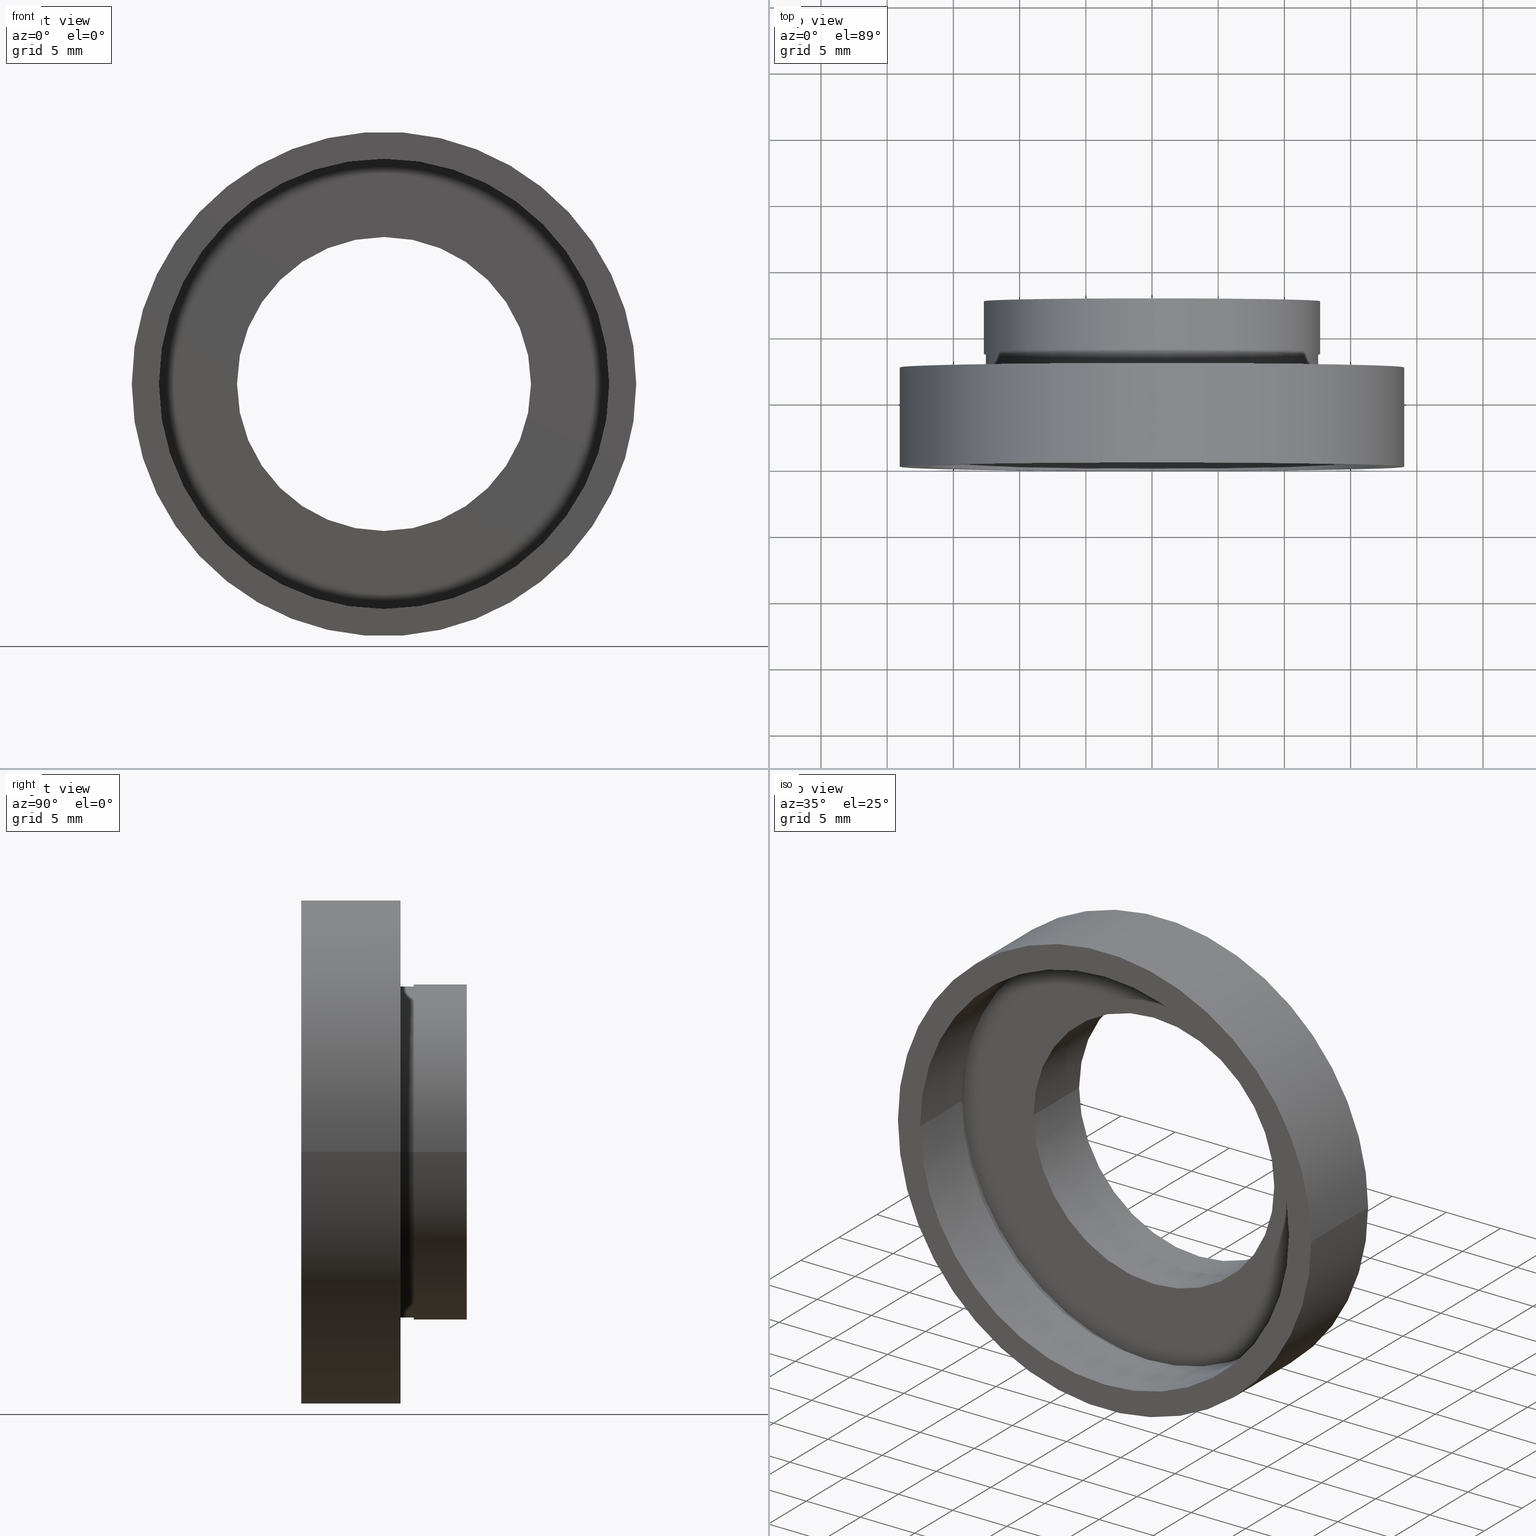
[diagram: canonical four-view strip — front | top / right | iso, engineering-drawing reading convention]
A machine part, canonical four-view strip (front | top / right | iso — engineering-drawing reading convention). The complete STEP part file that produces these views, byte-faithful:
ISO-10303-21;
HEADER;
FILE_DESCRIPTION (( 'STEP AP214' ),
    '1' );
FILE_NAME ('504056.STEP',
    '2019-10-08T03:40:58',
    ( 'user' ),
    ( '΢���й�' ),
    'SwSTEP 2.0',
    'SolidWorks 2016',
    '' );
FILE_SCHEMA (( 'AUTOMOTIVE_DESIGN' ));
ENDSEC;

DATA;
#1 = ORIENTED_EDGE ( 'NONE', *, *, #237, .F. ) ;
#2 = SURFACE_STYLE_USAGE ( .BOTH. , #83 ) ;
#3 = CYLINDRICAL_SURFACE ( 'NONE', #156, 12.69999999999999900 ) ;
#4 = APPLICATION_PROTOCOL_DEFINITION ( 'draft international standard', 'automotive_design', 1998, #161 ) ;
#5 = DIRECTION ( 'NONE',  ( -1.000000000000000000, -1.382249781654826400E-016, 0.0000000000000000000 ) ) ;
#6 = EDGE_CURVE ( 'NONE', #124, #435, #504, .T. ) ;
#7 = AXIS2_PLACEMENT_3D ( 'NONE', #464, #590, #567 ) ;
#8 = VERTEX_POINT ( 'NONE', #495 ) ;
#9 = LINE ( 'NONE', #387, #471 ) ;
#10 = ADVANCED_BREP_SHAPE_REPRESENTATION ( '504056', ( #474, #199 ), #293 ) ;
#11 = ADVANCED_FACE ( 'NONE', ( #548 ), #3, .T. ) ;
#12 = AXIS2_PLACEMENT_3D ( 'NONE', #391, #209, #385 ) ;
#13 = CIRCLE ( 'NONE', #619, 17.00000000000000000 ) ;
#14 = FACE_BOUND ( 'NONE', #534, .T. ) ;
#15 = FILL_AREA_STYLE ('',( #273 ) ) ;
#16 = EDGE_CURVE ( 'NONE', #509, #100, #226, .T. ) ;
#17 = CYLINDRICAL_SURFACE ( 'NONE', #7, 17.00000000000000000 ) ;
#18 = DIRECTION ( 'NONE',  ( 0.0000000000000000000, 0.0000000000000000000, 1.000000000000000000 ) ) ;
#19 = EDGE_LOOP ( 'NONE', ( #47, #71, #171, #505 ) ) ;
#20 =( NAMED_UNIT ( * ) SI_UNIT ( $, .STERADIAN. ) SOLID_ANGLE_UNIT ( ) );
#21 =( NAMED_UNIT ( * ) SI_UNIT ( $, .STERADIAN. ) SOLID_ANGLE_UNIT ( ) );
#22 = VERTEX_POINT ( 'NONE', #198 ) ;
#23 = CARTESIAN_POINT ( 'NONE',  ( 1.271920398992858000E-015, 6.499999999999997300, 0.0000000000000000000 ) ) ;
#24 = CARTESIAN_POINT ( 'NONE',  ( -17.00000000000000000, 16.88601823708207300, 0.0000000000000000000 ) ) ;
#25 = ADVANCED_FACE ( 'NONE', ( #517, #516 ), #291, .F. ) ;
#26 = AXIS2_PLACEMENT_3D ( 'NONE', #256, #515, #177 ) ;
#27 = AXIS2_PLACEMENT_3D ( 'NONE', #242, #229, #588 ) ;
#28 = SURFACE_STYLE_FILL_AREA ( #301 ) ;
#29 = EDGE_CURVE ( 'NONE', #124, #577, #494, .T. ) ;
#30 = ORIENTED_EDGE ( 'NONE', *, *, #16, .T. ) ;
#31 = FILL_AREA_STYLE_COLOUR ( '', #153 ) ;
#32 = CIRCLE ( 'NONE', #27, 12.55000000000000100 ) ;
#33 = DIRECTION ( 'NONE',  ( -1.224646799147351000E-016, 1.000000000000000000, -0.0000000000000000000 ) ) ;
#34 = DIRECTION ( 'NONE',  ( -1.224646799147351000E-016, 1.000000000000000000, -0.0000000000000000000 ) ) ;
#35 = ORIENTED_EDGE ( 'NONE', *, *, #575, .T. ) ;
#36 = CARTESIAN_POINT ( 'NONE',  ( 12.55000000000000100, 16.88601823708207700, 1.536931732929928400E-015 ) ) ;
#37 = CARTESIAN_POINT ( 'NONE',  ( 12.55000000000000200, 8.500000000000000000, 1.536931732929928400E-015 ) ) ;
#38 = DIRECTION ( 'NONE',  ( 1.000000000000000000, 1.224646799147351000E-016, 0.0000000000000000000 ) ) ;
#39 = CIRCLE ( 'NONE', #26, 12.55000000000000100 ) ;
#40 = DIRECTION ( 'NONE',  ( -1.224646799147351000E-016, 1.000000000000000000, -0.0000000000000000000 ) ) ;
#41 = DIRECTION ( 'NONE',  ( -1.224646799147351000E-016, 1.000000000000000000, -0.0000000000000000000 ) ) ;
#42 = ORIENTED_EDGE ( 'NONE', *, *, #247, .F. ) ;
#43 = ORIENTED_EDGE ( 'NONE', *, *, #437, .T. ) ;
#44 = EDGE_CURVE ( 'NONE', #585, #116, #234, .T. ) ;
#45 = AXIS2_PLACEMENT_3D ( 'NONE', #485, #230, #616 ) ;
#46 = DIRECTION ( 'NONE',  ( -1.000000000000000000, 0.0000000000000000000, 0.0000000000000000000 ) ) ;
#47 = ORIENTED_EDGE ( 'NONE', *, *, #308, .T. ) ;
#48 = MECHANICAL_DESIGN_GEOMETRIC_PRESENTATION_REPRESENTATION (  '', ( #312 ), #376 ) ;
#49 = UNCERTAINTY_MEASURE_WITH_UNIT (LENGTH_MEASURE( 1.000000000000000100E-005 ), #528, 'distance_accuracy_value', 'NONE');
#50 = AXIS2_PLACEMENT_3D ( 'NONE', #563, #578, #97 ) ;
#51 = DIRECTION ( 'NONE',  ( -1.000000000000000000, -1.365923996832131600E-016, 0.0000000000000000000 ) ) ;
#52 = EDGE_CURVE ( 'NONE', #509, #533, #486, .T. ) ;
#53 = DIRECTION ( 'NONE',  ( -1.224646799147351000E-016, 1.000000000000000000, 0.0000000000000000000 ) ) ;
#54 = ADVANCED_FACE ( 'NONE', ( #217, #488 ), #325, .F. ) ;
#55 = DIRECTION ( 'NONE',  ( 1.000000000000000000, 1.224646799147351000E-016, 0.0000000000000000000 ) ) ;
#56 = CIRCLE ( 'NONE', #519, 17.60000000000000100 ) ;
#57 = VERTEX_POINT ( 'NONE', #82 ) ;
#58 = VECTOR ( 'NONE', #421, 1000.000000000000000 ) ;
#59 = ADVANCED_FACE ( 'NONE', ( #595 ), #332, .F. ) ;
#60 = DIRECTION ( 'NONE',  ( -1.224646799147351000E-016, 1.000000000000000000, -0.0000000000000000000 ) ) ;
#61 = EDGE_LOOP ( 'NONE', ( #452, #371, #131, #77 ) ) ;
#62 = CARTESIAN_POINT ( 'NONE',  ( -17.60000000000000100, 6.499999999999995600, 0.0000000000000000000 ) ) ;
#63 = FACE_OUTER_BOUND ( 'NONE', #343, .T. ) ;
#64 = EDGE_LOOP ( 'NONE', ( #102, #140, #614, #160 ) ) ;
#65 =( GEOMETRIC_REPRESENTATION_CONTEXT ( 3 ) GLOBAL_UNCERTAINTY_ASSIGNED_CONTEXT ( ( #602 ) ) GLOBAL_UNIT_ASSIGNED_CONTEXT ( ( #415, #422, #151 ) ) REPRESENTATION_CONTEXT ( 'NONE', 'WORKASPACE' ) );
#66 = STYLED_ITEM ( 'NONE', ( #164 ), #11 ) ;
#67 = COLOUR_RGB ( '',1.000000000000000000, 1.000000000000000000, 1.000000000000000000 ) ;
#68 = ORIENTED_EDGE ( 'NONE', *, *, #420, .F. ) ;
#69 = DIRECTION ( 'NONE',  ( -1.224646799147351000E-016, 1.000000000000000000, -0.0000000000000000000 ) ) ;
#70 = FACE_BOUND ( 'NONE', #610, .T. ) ;
#71 = ORIENTED_EDGE ( 'NONE', *, *, #562, .T. ) ;
#72 = UNCERTAINTY_MEASURE_WITH_UNIT (LENGTH_MEASURE( 1.000000000000000100E-005 ), #411, 'distance_accuracy_value', 'NONE');
#73 = DIRECTION ( 'NONE',  ( -1.000000000000000000, -1.224646799147351500E-016, 0.0000000000000000000 ) ) ;
#74 = ORIENTED_EDGE ( 'NONE', *, *, #436, .T. ) ;
#75 = CIRCLE ( 'NONE', #165, 11.10000000000000000 ) ;
#76 = EDGE_CURVE ( 'NONE', #100, #278, #9, .T. ) ;
#77 = ORIENTED_EDGE ( 'NONE', *, *, #6, .F. ) ;
#78 =( GEOMETRIC_REPRESENTATION_CONTEXT ( 3 ) GLOBAL_UNCERTAINTY_ASSIGNED_CONTEXT ( ( #402 ) ) GLOBAL_UNIT_ASSIGNED_CONTEXT ( ( #532, #540, #581 ) ) REPRESENTATION_CONTEXT ( 'NONE', 'WORKASPACE' ) );
#79 = CARTESIAN_POINT ( 'NONE',  ( 2.067940818438636500E-015, -3.469446951953614200E-015, 0.0000000000000000000 ) ) ;
#80 = SURFACE_STYLE_FILL_AREA ( #267 ) ;
#81 = CARTESIAN_POINT ( 'NONE',  ( 12.55000000000000200, 7.500000000000000000, 1.536931732929928400E-015 ) ) ;
#82 = CARTESIAN_POINT ( 'NONE',  ( -12.69999999999999600, 8.499999999999996400, 0.0000000000000000000 ) ) ;
#83 = SURFACE_SIDE_STYLE ('',( #28 ) ) ;
#84 = CIRCLE ( 'NONE', #477, 11.10000000000000100 ) ;
#85 = CARTESIAN_POINT ( 'NONE',  ( -12.69999999999999900, 16.88601823708207700, 0.0000000000000000000 ) ) ;
#86 = DIRECTION ( 'NONE',  ( -1.224646799147351000E-016, 1.000000000000000000, -0.0000000000000000000 ) ) ;
#87 = ORIENTED_EDGE ( 'NONE', *, *, #205, .F. ) ;
#88 = ORIENTED_EDGE ( 'NONE', *, *, #76, .F. ) ;
#89 = ORIENTED_EDGE ( 'NONE', *, *, #529, .T. ) ;
#90 = DIRECTION ( 'NONE',  ( -1.224646799147351000E-016, 1.000000000000000000, -0.0000000000000000000 ) ) ;
#91 = UNCERTAINTY_MEASURE_WITH_UNIT (LENGTH_MEASURE( 1.000000000000000100E-005 ), #196, 'distance_accuracy_value', 'NONE');
#92 = PRESENTATION_LAYER_ASSIGNMENT (  '', '', ( #66 ) ) ;
#93 = PRESENTATION_STYLE_ASSIGNMENT (( #340 ) ) ;
#94 = DIRECTION ( 'NONE',  ( -1.000000000000000000, -1.365923996832131600E-016, 0.0000000000000000000 ) ) ;
#95 = CYLINDRICAL_SURFACE ( 'NONE', #150, 17.00000000000000000 ) ;
#96 = SURFACE_STYLE_FILL_AREA ( #227 ) ;
#97 = DIRECTION ( 'NONE',  ( -1.000000000000000000, -9.856383386231857600E-017, 0.0000000000000000000 ) ) ;
#98 = DIRECTION ( 'NONE',  ( -1.224646799147351000E-016, 1.000000000000000000, -0.0000000000000000000 ) ) ;
#99 = DIRECTION ( 'NONE',  ( -1.224646799147351000E-016, 1.000000000000000000, -0.0000000000000000000 ) ) ;
#100 = VERTEX_POINT ( 'NONE', #236 ) ;
#101 = FACE_OUTER_BOUND ( 'NONE', #158, .T. ) ;
#102 = ORIENTED_EDGE ( 'NONE', *, *, #361, .F. ) ;
#103 = CARTESIAN_POINT ( 'NONE',  ( 1.271920398992858000E-015, 6.499999999999997300, 0.0000000000000000000 ) ) ;
#104 = LINE ( 'NONE', #139, #179 ) ;
#105 = AXIS2_PLACEMENT_3D ( 'NONE', #129, #410, #493 ) ;
#106 = PRESENTATION_LAYER_ASSIGNMENT (  '', '', ( #277 ) ) ;
#107 = MECHANICAL_DESIGN_GEOMETRIC_PRESENTATION_REPRESENTATION (  '', ( #66 ), #138 ) ;
#108 = ORIENTED_EDGE ( 'NONE', *, *, #52, .T. ) ;
#109 = CARTESIAN_POINT ( 'NONE',  ( 5.371323195044474300E-016, 12.49999999999999600, 0.0000000000000000000 ) ) ;
#110 = SURFACE_STYLE_FILL_AREA ( #330 ) ;
#111 = DIRECTION ( 'NONE',  ( -1.000000000000000000, -9.856383386231857600E-017, 0.0000000000000000000 ) ) ;
#112 = FILL_AREA_STYLE_COLOUR ( '', #409 ) ;
#113 = CARTESIAN_POINT ( 'NONE',  ( 1.149455719078122700E-015, 7.499999999999998200, 0.0000000000000000000 ) ) ;
#114 = MECHANICAL_DESIGN_GEOMETRIC_PRESENTATION_REPRESENTATION (  '', ( #220 ), #432 ) ;
#115 = ORIENTED_EDGE ( 'NONE', *, *, #174, .T. ) ;
#116 = VERTEX_POINT ( 'NONE', #510 ) ;
#117 = CARTESIAN_POINT ( 'NONE',  ( 1.271920398992858000E-015, 6.499999999999997300, 0.0000000000000000000 ) ) ;
#118 = EDGE_CURVE ( 'NONE', #577, #459, #461, .T. ) ;
#119 = AXIS2_PLACEMENT_3D ( 'NONE', #503, #491, #360 ) ;
#120 = PRESENTATION_LAYER_ASSIGNMENT (  '', '', ( #312 ) ) ;
#121 = CARTESIAN_POINT ( 'NONE',  ( 0.0000000000000000000, 16.88601823708207700, 0.0000000000000000000 ) ) ;
#122 = ORIENTED_EDGE ( 'NONE', *, *, #6, .T. ) ;
#123 = DIRECTION ( 'NONE',  ( -1.224646799147351000E-016, 1.000000000000000000, -0.0000000000000000000 ) ) ;
#124 = VERTEX_POINT ( 'NONE', #579 ) ;
#125 = ORIENTED_EDGE ( 'NONE', *, *, #575, .F. ) ;
#126 = FACE_OUTER_BOUND ( 'NONE', #241, .T. ) ;
#127 = VECTOR ( 'NONE', #377, 1000.000000000000000 ) ;
#128 = ORIENTED_EDGE ( 'NONE', *, *, #298, .F. ) ;
#129 = CARTESIAN_POINT ( 'NONE',  ( 1.149455719078122700E-015, 7.499999999999998200, 0.0000000000000000000 ) ) ;
#130 = FACE_OUTER_BOUND ( 'NONE', #214, .T. ) ;
#131 = ORIENTED_EDGE ( 'NONE', *, *, #512, .F. ) ;
#132 = APPLICATION_PROTOCOL_DEFINITION ( 'draft international standard', 'automotive_design', 1998, #249 ) ;
#133 = FACE_OUTER_BOUND ( 'NONE', #622, .T. ) ;
#134 = DIRECTION ( 'NONE',  ( -1.000000000000000000, -9.856383386231857600E-017, 0.0000000000000000000 ) ) ;
#135 = AXIS2_PLACEMENT_3D ( 'NONE', #603, #305, #245 ) ;
#136 = MECHANICAL_DESIGN_GEOMETRIC_PRESENTATION_REPRESENTATION (  '', ( #277 ), #65 ) ;
#137 = DIRECTION ( 'NONE',  ( -1.000000000000000000, -1.562813942321447500E-016, 0.0000000000000000000 ) ) ;
#138 =( GEOMETRIC_REPRESENTATION_CONTEXT ( 3 ) GLOBAL_UNCERTAINTY_ASSIGNED_CONTEXT ( ( #72 ) ) GLOBAL_UNIT_ASSIGNED_CONTEXT ( ( #411, #608, #212 ) ) REPRESENTATION_CONTEXT ( 'NONE', 'WORKASPACE' ) );
#139 = CARTESIAN_POINT ( 'NONE',  ( -19.04999999999999700, 16.88601823708207300, 0.0000000000000000000 ) ) ;
#140 = ORIENTED_EDGE ( 'NONE', *, *, #420, .T. ) ;
#141 = FACE_OUTER_BOUND ( 'NONE', #200, .T. ) ;
#142 = LINE ( 'NONE', #251, #444 ) ;
#143 = CYLINDRICAL_SURFACE ( 'NONE', #45, 19.04999999999999700 ) ;
#144 = CARTESIAN_POINT ( 'NONE',  ( -17.60000000000000100, 5.499999999999994700, 0.0000000000000000000 ) ) ;
#145 = EDGE_LOOP ( 'NONE', ( #115, #369, #598, #148 ) ) ;
#146 = DIRECTION ( 'NONE',  ( -1.224646799147351000E-016, 1.000000000000000000, -0.0000000000000000000 ) ) ;
#147 = CARTESIAN_POINT ( 'NONE',  ( 19.04999999999999700, 16.88601823708208000, 2.332952152375707300E-015 ) ) ;
#148 = ORIENTED_EDGE ( 'NONE', *, *, #566, .F. ) ;
#149 = ORIENTED_EDGE ( 'NONE', *, *, #215, .F. ) ;
#150 = AXIS2_PLACEMENT_3D ( 'NONE', #506, #221, #480 ) ;
#151 =( NAMED_UNIT ( * ) SI_UNIT ( $, .STERADIAN. ) SOLID_ANGLE_UNIT ( ) );
#152 = SURFACE_STYLE_FILL_AREA ( #159 ) ;
#153 = COLOUR_RGB ( '',1.000000000000000000, 1.000000000000000000, 1.000000000000000000 ) ;
#154 = DIRECTION ( 'NONE',  ( -1.224646799147351000E-016, 1.000000000000000000, -0.0000000000000000000 ) ) ;
#155 = FACE_OUTER_BOUND ( 'NONE', #315, .T. ) ;
#156 = AXIS2_PLACEMENT_3D ( 'NONE', #358, #195, #216 ) ;
#157 = EDGE_LOOP ( 'NONE', ( #88, #253, #108, #442 ) ) ;
#158 = EDGE_LOOP ( 'NONE', ( #316, #173 ) ) ;
#159 = FILL_AREA_STYLE ('',( #395 ) ) ;
#160 = ORIENTED_EDGE ( 'NONE', *, *, #463, .F. ) ;
#161 = APPLICATION_CONTEXT ( 'automotive_design' ) ;
#162 = CARTESIAN_POINT ( 'NONE',  ( 0.0000000000000000000, 16.88601823708207700, 0.0000000000000000000 ) ) ;
#163 = CARTESIAN_POINT ( 'NONE',  ( 11.10000000000000100, 6.499999999999999100, 0.0000000000000000000 ) ) ;
#164 = PRESENTATION_STYLE_ASSIGNMENT (( #311 ) ) ;
#165 = AXIS2_PLACEMENT_3D ( 'NONE', #23, #98, #433 ) ;
#166 = AXIS2_PLACEMENT_3D ( 'NONE', #546, #559, #73 ) ;
#167 = CYLINDRICAL_SURFACE ( 'NONE', #589, 11.10000000000000100 ) ;
#168 = CARTESIAN_POINT ( 'NONE',  ( -17.00000000000000400, 5.499999999999996400, 0.0000000000000000000 ) ) ;
#169 = CARTESIAN_POINT ( 'NONE',  ( -19.05000000000000100, 7.499999999999995600, 0.0000000000000000000 ) ) ;
#170 =( NAMED_UNIT ( * ) PLANE_ANGLE_UNIT ( ) SI_UNIT ( $, .RADIAN. ) );
#171 = ORIENTED_EDGE ( 'NONE', *, *, #476, .F. ) ;
#172 = STYLED_ITEM ( 'NONE', ( #321 ), #474 ) ;
#173 = ORIENTED_EDGE ( 'NONE', *, *, #599, .F. ) ;
#174 = EDGE_CURVE ( 'NONE', #535, #303, #399, .T. ) ;
#175 = EDGE_LOOP ( 'NONE', ( #125, #323, #74, #89 ) ) ;
#176 = EDGE_LOOP ( 'NONE', ( #403, #250 ) ) ;
#177 = DIRECTION ( 'NONE',  ( -1.000000000000000000, -1.382249781654826400E-016, 0.0000000000000000000 ) ) ;
#178 = DIRECTION ( 'NONE',  ( -1.224646799147351000E-016, 1.000000000000000000, -0.0000000000000000000 ) ) ;
#179 = VECTOR ( 'NONE', #34, 1000.000000000000000 ) ;
#180 =( NAMED_UNIT ( * ) PLANE_ANGLE_UNIT ( ) SI_UNIT ( $, .RADIAN. ) );
#181 = DIRECTION ( 'NONE',  ( -1.224646799147351000E-016, 1.000000000000000000, -0.0000000000000000000 ) ) ;
#182 = AXIS2_PLACEMENT_3D ( 'NONE', #381, #388, #219 ) ;
#183 = ORIENTED_EDGE ( 'NONE', *, *, #529, .F. ) ;
#184 = UNCERTAINTY_MEASURE_WITH_UNIT (LENGTH_MEASURE( 1.000000000000000100E-005 ), #282, 'distance_accuracy_value', 'NONE');
#185 = FACE_OUTER_BOUND ( 'NONE', #61, .T. ) ;
#186 =( LENGTH_UNIT ( ) NAMED_UNIT ( * ) SI_UNIT ( .MILLI., .METRE. ) );
#187 = EDGE_LOOP ( 'NONE', ( #543, #335 ) ) ;
#188 = CARTESIAN_POINT ( 'NONE',  ( 0.0000000000000000000, 16.88601823708207700, 0.0000000000000000000 ) ) ;
#189 = ORIENTED_EDGE ( 'NONE', *, *, #76, .T. ) ;
#190 =( LENGTH_UNIT ( ) NAMED_UNIT ( * ) SI_UNIT ( .MILLI., .METRE. ) );
#191 = PRESENTATION_LAYER_ASSIGNMENT (  '', '', ( #222 ) ) ;
#192 = AXIS2_PLACEMENT_3D ( 'NONE', #193, #258, #5 ) ;
#193 = CARTESIAN_POINT ( 'NONE',  ( 1.149455719078122700E-015, 7.499999999999998200, 0.0000000000000000000 ) ) ;
#194 = ORIENTED_EDGE ( 'NONE', *, *, #476, .T. ) ;
#195 = DIRECTION ( 'NONE',  ( -1.224646799147351000E-016, 1.000000000000000000, -0.0000000000000000000 ) ) ;
#196 =( LENGTH_UNIT ( ) NAMED_UNIT ( * ) SI_UNIT ( .MILLI., .METRE. ) );
#197 = SURFACE_STYLE_FILL_AREA ( #15 ) ;
#198 = CARTESIAN_POINT ( 'NONE',  ( 17.60000000000000100, 6.499999999999999100, 2.155378366499341600E-015 ) ) ;
#199 = AXIS2_PLACEMENT_3D ( 'NONE', #417, #18, #418 ) ;
#200 = EDGE_LOOP ( 'NONE', ( #68, #574, #223, #394 ) ) ;
#201 = DIRECTION ( 'NONE',  ( -1.224646799147351000E-016, 1.000000000000000000, -0.0000000000000000000 ) ) ;
#202 = CARTESIAN_POINT ( 'NONE',  ( 11.10000000000000100, 6.499999999999999100, 1.359357947053562400E-015 ) ) ;
#203 = EDGE_LOOP ( 'NONE', ( #508, #545 ) ) ;
#204 = DIRECTION ( 'NONE',  ( -1.224646799147351000E-016, 1.000000000000000000, 0.0000000000000000000 ) ) ;
#205 = EDGE_CURVE ( 'NONE', #479, #481, #338, .T. ) ;
#206 = SURFACE_SIDE_STYLE ('',( #96 ) ) ;
#207 = PRODUCT ( '504056', '504056', '', ( #467 ) ) ;
#208 = ORIENTED_EDGE ( 'NONE', *, *, #118, .F. ) ;
#209 = DIRECTION ( 'NONE',  ( -1.224646799147351000E-016, 1.000000000000000000, -0.0000000000000000000 ) ) ;
#210 = AXIS2_PLACEMENT_3D ( 'NONE', #117, #99, #111 ) ;
#211 = FILL_AREA_STYLE_COLOUR ( '', #400 ) ;
#212 =( NAMED_UNIT ( * ) SI_UNIT ( $, .STERADIAN. ) SOLID_ANGLE_UNIT ( ) );
#213 = PLANE ( 'NONE',  #119 ) ;
#214 = EDGE_LOOP ( 'NONE', ( #149, #35, #274, #263 ) ) ;
#215 = EDGE_CURVE ( 'NONE', #353, #331, #75, .T. ) ;
#216 = DIRECTION ( 'NONE',  ( -1.000000000000000000, 0.0000000000000000000, 0.0000000000000000000 ) ) ;
#217 = FACE_BOUND ( 'NONE', #232, .T. ) ;
#218 = DIRECTION ( 'NONE',  ( -1.224646799147351000E-016, 1.000000000000000000, -0.0000000000000000000 ) ) ;
#219 = DIRECTION ( 'NONE',  ( -1.000000000000000000, -1.365923996832131900E-016, 0.0000000000000000000 ) ) ;
#220 = STYLED_ITEM ( 'NONE', ( #583 ), #489 ) ;
#221 = DIRECTION ( 'NONE',  ( -1.224646799147351000E-016, 1.000000000000000000, -0.0000000000000000000 ) ) ;
#222 = STYLED_ITEM ( 'NONE', ( #306 ), #231 ) ;
#223 = ORIENTED_EDGE ( 'NONE', *, *, #463, .T. ) ;
#224 = AXIS2_PLACEMENT_3D ( 'NONE', #266, #123, #137 ) ;
#225 = VERTEX_POINT ( 'NONE', #367 ) ;
#226 = CIRCLE ( 'NONE', #166, 17.00000000000000000 ) ;
#227 = FILL_AREA_STYLE ('',( #112 ) ) ;
#228 =( NAMED_UNIT ( * ) PLANE_ANGLE_UNIT ( ) SI_UNIT ( $, .RADIAN. ) );
#229 = DIRECTION ( 'NONE',  ( -1.224646799147351000E-016, 1.000000000000000000, -0.0000000000000000000 ) ) ;
#230 = DIRECTION ( 'NONE',  ( -1.224646799147351000E-016, 1.000000000000000000, -0.0000000000000000000 ) ) ;
#231 = ADVANCED_FACE ( 'NONE', ( #607 ), #564, .T. ) ;
#232 = EDGE_LOOP ( 'NONE', ( #365, #468 ) ) ;
#233 = PLANE ( 'NONE',  #244 ) ;
#234 = CIRCLE ( 'NONE', #224, 11.10000000000000100 ) ;
#235 = VECTOR ( 'NONE', #40, 1000.000000000000000 ) ;
#236 = CARTESIAN_POINT ( 'NONE',  ( 17.00000000000000400, -1.387547393403117700E-015, 2.081899558550500700E-015 ) ) ;
#237 = EDGE_CURVE ( 'NONE', #303, #479, #613, .T. ) ;
#238 = FILL_AREA_STYLE ('',( #211 ) ) ;
#239 = CARTESIAN_POINT ( 'NONE',  ( 2.067940818438636500E-015, -3.469446951953614200E-015, 0.0000000000000000000 ) ) ;
#240 = EDGE_LOOP ( 'NONE', ( #620, #261 ) ) ;
#241 = EDGE_LOOP ( 'NONE', ( #490, #329 ) ) ;
#242 = CARTESIAN_POINT ( 'NONE',  ( 1.149455719078122700E-015, 7.499999999999998200, 0.0000000000000000000 ) ) ;
#243 = DIRECTION ( 'NONE',  ( -1.000000000000000000, -1.224646799147351000E-016, 0.0000000000000000000 ) ) ;
#244 = AXIS2_PLACEMENT_3D ( 'NONE', #163, #522, #243 ) ;
#245 = DIRECTION ( 'NONE',  ( -1.000000000000000000, -1.562813942321447800E-016, 0.0000000000000000000 ) ) ;
#246 = VERTEX_POINT ( 'NONE', #62 ) ;
#247 = EDGE_CURVE ( 'NONE', #278, #533, #604, .T. ) ;
#248 = PRESENTATION_STYLE_ASSIGNMENT (( #443 ) ) ;
#249 = APPLICATION_CONTEXT ( 'automotive_design' ) ;
#250 = ORIENTED_EDGE ( 'NONE', *, *, #530, .F. ) ;
#251 = CARTESIAN_POINT ( 'NONE',  ( 11.10000000000000100, 16.88601823708207700, 1.359357947053562400E-015 ) ) ;
#252 = AXIS2_PLACEMENT_3D ( 'NONE', #565, #33, #611 ) ;
#253 = ORIENTED_EDGE ( 'NONE', *, *, #16, .F. ) ;
#254 = DIRECTION ( 'NONE',  ( -1.224646799147351000E-016, 1.000000000000000000, -0.0000000000000000000 ) ) ;
#255 =( GEOMETRIC_REPRESENTATION_CONTEXT ( 3 ) GLOBAL_UNCERTAINTY_ASSIGNED_CONTEXT ( ( #91 ) ) GLOBAL_UNIT_ASSIGNED_CONTEXT ( ( #196, #228, #20 ) ) REPRESENTATION_CONTEXT ( 'NONE', 'WORKASPACE' ) );
#256 = CARTESIAN_POINT ( 'NONE',  ( 1.026991039163387700E-015, 8.499999999999998200, 0.0000000000000000000 ) ) ;
#257 = AXIS2_PLACEMENT_3D ( 'NONE', #284, #53, #392 ) ;
#258 = DIRECTION ( 'NONE',  ( -1.224646799147351000E-016, 1.000000000000000000, -0.0000000000000000000 ) ) ;
#259 = VECTOR ( 'NONE', #341, 1000.000000000000000 ) ;
#260 = PRESENTATION_STYLE_ASSIGNMENT (( #568 ) ) ;
#261 = ORIENTED_EDGE ( 'NONE', *, *, #215, .T. ) ;
#262 = ADVANCED_FACE ( 'NONE', ( #593, #345 ), #460, .F. ) ;
#263 = ORIENTED_EDGE ( 'NONE', *, *, #436, .F. ) ;
#264 = UNCERTAINTY_MEASURE_WITH_UNIT (LENGTH_MEASURE( 1.000000000000000100E-005 ), #186, 'distance_accuracy_value', 'NONE');
#265 = CYLINDRICAL_SURFACE ( 'NONE', #526, 19.04999999999999700 ) ;
#266 = CARTESIAN_POINT ( 'NONE',  ( 5.371323195044472300E-016, 12.49999999999999800, 0.0000000000000000000 ) ) ;
#267 = FILL_AREA_STYLE ('',( #439 ) ) ;
#268 = AXIS2_PLACEMENT_3D ( 'NONE', #596, #314, #46 ) ;
#269 = SURFACE_STYLE_FILL_AREA ( #238 ) ;
#270 = UNCERTAINTY_MEASURE_WITH_UNIT (LENGTH_MEASURE( 1.000000000000000100E-005 ), #556, 'distance_accuracy_value', 'NONE');
#271 = CARTESIAN_POINT ( 'NONE',  ( 19.05000000000000100, 7.500000000000000900, 2.332952152375707600E-015 ) ) ;
#272 = EDGE_CURVE ( 'NONE', #8, #57, #582, .T. ) ;
#273 = FILL_AREA_STYLE_COLOUR ( '', #67 ) ;
#274 = ORIENTED_EDGE ( 'NONE', *, *, #44, .T. ) ;
#275 =( NAMED_UNIT ( * ) PLANE_ANGLE_UNIT ( ) SI_UNIT ( $, .RADIAN. ) );
#276 = CARTESIAN_POINT ( 'NONE',  ( 12.69999999999999900, 16.88601823708207700, 1.555301434917138400E-015 ) ) ;
#277 = STYLED_ITEM ( 'NONE', ( #414 ), #383 ) ;
#278 = VERTEX_POINT ( 'NONE', #333 ) ;
#279 = ORIENTED_EDGE ( 'NONE', *, *, #272, .F. ) ;
#280 = EDGE_CURVE ( 'NONE', #285, #499, #56, .T. ) ;
#281 = AXIS2_PLACEMENT_3D ( 'NONE', #363, #346, #366 ) ;
#282 =( LENGTH_UNIT ( ) NAMED_UNIT ( * ) SI_UNIT ( .MILLI., .METRE. ) );
#283 = DIRECTION ( 'NONE',  ( -1.224646799147351000E-016, 1.000000000000000000, -0.0000000000000000000 ) ) ;
#284 = CARTESIAN_POINT ( 'NONE',  ( 12.69999999999999900, 8.500000000000000000, 0.0000000000000000000 ) ) ;
#285 = VERTEX_POINT ( 'NONE', #144 ) ;
#286 = SURFACE_SIDE_STYLE ('',( #197 ) ) ;
#287 = MECHANICAL_DESIGN_GEOMETRIC_PRESENTATION_REPRESENTATION (  '', ( #222 ), #255 ) ;
#288 = LINE ( 'NONE', #558, #557 ) ;
#289 = STYLED_ITEM ( 'NONE', ( #93 ), #59 ) ;
#290 = ORIENTED_EDGE ( 'NONE', *, *, #466, .F. ) ;
#291 = PLANE ( 'NONE',  #257 ) ;
#292 = PRODUCT_DEFINITION_CONTEXT ( 'detailed design', #161, 'design' ) ;
#293 =( GEOMETRIC_REPRESENTATION_CONTEXT ( 3 ) GLOBAL_UNCERTAINTY_ASSIGNED_CONTEXT ( ( #184 ) ) GLOBAL_UNIT_ASSIGNED_CONTEXT ( ( #282, #275, #624 ) ) REPRESENTATION_CONTEXT ( 'NONE', 'WORKASPACE' ) );
#294 = SURFACE_SIDE_STYLE ('',( #269 ) ) ;
#295 =( NAMED_UNIT ( * ) SI_UNIT ( $, .STERADIAN. ) SOLID_ANGLE_UNIT ( ) );
#296 = DIRECTION ( 'NONE',  ( -1.000000000000000000, -9.856383386231857600E-017, 0.0000000000000000000 ) ) ;
#297 = CIRCLE ( 'NONE', #182, 12.69999999999999800 ) ;
#298 = EDGE_CURVE ( 'NONE', #533, #278, #370, .T. ) ;
#299 = LINE ( 'NONE', #352, #259 ) ;
#300 = ADVANCED_FACE ( 'NONE', ( #101, #339 ), #233, .F. ) ;
#301 = FILL_AREA_STYLE ('',( #310 ) ) ;
#302 = CARTESIAN_POINT ( 'NONE',  ( 11.10000000000000100, 12.50000000000000000, 1.359357947053562400E-015 ) ) ;
#303 = VERTEX_POINT ( 'NONE', #318 ) ;
#304 = AXIS2_PLACEMENT_3D ( 'NONE', #456, #334, #55 ) ;
#305 = DIRECTION ( 'NONE',  ( -1.224646799147351000E-016, 1.000000000000000000, -0.0000000000000000000 ) ) ;
#306 = PRESENTATION_STYLE_ASSIGNMENT (( #2 ) ) ;
#307 = SHAPE_DEFINITION_REPRESENTATION ( #586, #10 ) ;
#308 = EDGE_CURVE ( 'NONE', #57, #8, #297, .T. ) ;
#309 = STYLED_ITEM ( 'NONE', ( #248 ), #576 ) ;
#310 = FILL_AREA_STYLE_COLOUR ( '', #348 ) ;
#311 = SURFACE_STYLE_USAGE ( .BOTH. , #507 ) ;
#312 = STYLED_ITEM ( 'NONE', ( #260 ), #10 ) ;
#313 = ORIENTED_EDGE ( 'NONE', *, *, #52, .F. ) ;
#314 = DIRECTION ( 'NONE',  ( -1.224646799147351000E-016, 1.000000000000000000, -0.0000000000000000000 ) ) ;
#315 = EDGE_LOOP ( 'NONE', ( #354, #189, #492, #313 ) ) ;
#316 = ORIENTED_EDGE ( 'NONE', *, *, #327, .F. ) ;
#317 = SURFACE_SIDE_STYLE ('',( #80 ) ) ;
#318 = CARTESIAN_POINT ( 'NONE',  ( 19.05000000000000100, -1.136494799577911100E-015, 2.332952152375707600E-015 ) ) ;
#319 = DIRECTION ( 'NONE',  ( -1.224646799147351000E-016, 1.000000000000000000, -0.0000000000000000000 ) ) ;
#320 = COLOUR_RGB ( '',1.000000000000000000, 1.000000000000000000, 1.000000000000000000 ) ;
#321 = PRESENTATION_STYLE_ASSIGNMENT (( #406 ) ) ;
#322 = SURFACE_SIDE_STYLE ('',( #390 ) ) ;
#323 = ORIENTED_EDGE ( 'NONE', *, *, #502, .F. ) ;
#324 = AXIS2_PLACEMENT_3D ( 'NONE', #431, #201, #554 ) ;
#325 = PLANE ( 'NONE',  #382 ) ;
#326 = CIRCLE ( 'NONE', #378, 12.69999999999999900 ) ;
#327 = EDGE_CURVE ( 'NONE', #246, #22, #547, .T. ) ;
#328 =( NAMED_UNIT ( * ) SI_UNIT ( $, .STERADIAN. ) SOLID_ANGLE_UNIT ( ) );
#329 = ORIENTED_EDGE ( 'NONE', *, *, #361, .T. ) ;
#330 = FILL_AREA_STYLE ('',( #404 ) ) ;
#331 = VERTEX_POINT ( 'NONE', #536 ) ;
#332 = CYLINDRICAL_SURFACE ( 'NONE', #552, 11.10000000000000100 ) ;
#333 = CARTESIAN_POINT ( 'NONE',  ( 17.00000000000000400, 5.500000000000000000, 2.081899558550500700E-015 ) ) ;
#334 = DIRECTION ( 'NONE',  ( 1.224646799147351000E-016, -1.000000000000000000, 0.0000000000000000000 ) ) ;
#335 = ORIENTED_EDGE ( 'NONE', *, *, #466, .T. ) ;
#336 = DIRECTION ( 'NONE',  ( -1.224646799147351000E-016, 1.000000000000000000, -0.0000000000000000000 ) ) ;
#337 = AXIS2_PLACEMENT_3D ( 'NONE', #523, #606, #374 ) ;
#338 = CIRCLE ( 'NONE', #609, 19.05000000000000100 ) ;
#339 = FACE_BOUND ( 'NONE', #240, .T. ) ;
#340 = SURFACE_STYLE_USAGE ( .BOTH. , #458 ) ;
#341 = DIRECTION ( 'NONE',  ( -1.224646799147351000E-016, 1.000000000000000000, -0.0000000000000000000 ) ) ;
#342 = CLOSED_SHELL ( 'NONE', ( #440, #483, #231, #383, #555, #576, #262, #489, #527, #386, #300, #59, #368, #11, #25, #615, #54, #569 ) ) ;
#343 = EDGE_LOOP ( 'NONE', ( #194, #592 ) ) ;
#344 = PRODUCT_DEFINITION ( 'δ֪', '', #600, #292 ) ;
#345 = FACE_BOUND ( 'NONE', #434, .T. ) ;
#346 = DIRECTION ( 'NONE',  ( -1.224646799147351000E-016, 1.000000000000000000, -0.0000000000000000000 ) ) ;
#347 = PRESENTATION_LAYER_ASSIGNMENT (  '', '', ( #289 ) ) ;
#348 = COLOUR_RGB ( '',1.000000000000000000, 1.000000000000000000, 1.000000000000000000 ) ;
#349 = FACE_OUTER_BOUND ( 'NONE', #525, .T. ) ;
#350 = DIRECTION ( 'NONE',  ( -1.000000000000000000, -1.365923996832131900E-016, 0.0000000000000000000 ) ) ;
#351 =( NAMED_UNIT ( * ) PLANE_ANGLE_UNIT ( ) SI_UNIT ( $, .RADIAN. ) );
#352 = CARTESIAN_POINT ( 'NONE',  ( 17.60000000000000100, 16.88601823708208000, 2.155378366499341600E-015 ) ) ;
#353 = VERTEX_POINT ( 'NONE', #202 ) ;
#354 = ORIENTED_EDGE ( 'NONE', *, *, #396, .F. ) ;
#355 = SURFACE_STYLE_USAGE ( .BOTH. , #322 ) ;
#356 =( GEOMETRIC_REPRESENTATION_CONTEXT ( 3 ) GLOBAL_UNCERTAINTY_ASSIGNED_CONTEXT ( ( #264 ) ) GLOBAL_UNIT_ASSIGNED_CONTEXT ( ( #186, #180, #295 ) ) REPRESENTATION_CONTEXT ( 'NONE', 'WORKASPACE' ) );
#357 = PRODUCT_RELATED_PRODUCT_CATEGORY ( 'part', '', ( #207 ) ) ;
#358 = CARTESIAN_POINT ( 'NONE',  ( 0.0000000000000000000, 16.88601823708207700, 0.0000000000000000000 ) ) ;
#359 = CIRCLE ( 'NONE', #324, 12.55000000000000100 ) ;
#360 = DIRECTION ( 'NONE',  ( 1.000000000000000000, 1.224646799147351000E-016, 0.0000000000000000000 ) ) ;
#361 = EDGE_CURVE ( 'NONE', #499, #285, #397, .T. ) ;
#362 = DIRECTION ( 'NONE',  ( -1.224646799147351000E-016, 1.000000000000000000, -0.0000000000000000000 ) ) ;
#363 = CARTESIAN_POINT ( 'NONE',  ( 2.067940818438636500E-015, -3.469446951953614200E-015, 0.0000000000000000000 ) ) ;
#364 = CARTESIAN_POINT ( 'NONE',  ( 1.394385078907593200E-015, 5.499999999999996400, 0.0000000000000000000 ) ) ;
#365 = ORIENTED_EDGE ( 'NONE', *, *, #29, .F. ) ;
#366 = DIRECTION ( 'NONE',  ( -1.000000000000000000, -1.224646799147351000E-016, 0.0000000000000000000 ) ) ;
#367 = CARTESIAN_POINT ( 'NONE',  ( -12.69999999999999900, 12.49999999999999500, 0.0000000000000000000 ) ) ;
#368 = ADVANCED_FACE ( 'NONE', ( #70, #63 ), #393, .F. ) ;
#369 = ORIENTED_EDGE ( 'NONE', *, *, #237, .T. ) ;
#370 = CIRCLE ( 'NONE', #550, 17.00000000000000400 ) ;
#371 = ORIENTED_EDGE ( 'NONE', *, *, #118, .T. ) ;
#372 =( NAMED_UNIT ( * ) SI_UNIT ( $, .STERADIAN. ) SOLID_ANGLE_UNIT ( ) );
#373 = PRESENTATION_LAYER_ASSIGNMENT (  '', '', ( #309 ) ) ;
#374 = DIRECTION ( 'NONE',  ( -1.000000000000000000, -1.971276677246371500E-016, 0.0000000000000000000 ) ) ;
#375 = CIRCLE ( 'NONE', #135, 11.10000000000000000 ) ;
#376 =( GEOMETRIC_REPRESENTATION_CONTEXT ( 3 ) GLOBAL_UNCERTAINTY_ASSIGNED_CONTEXT ( ( #398 ) ) GLOBAL_UNIT_ASSIGNED_CONTEXT ( ( #190, #351, #328 ) ) REPRESENTATION_CONTEXT ( 'NONE', 'WORKASPACE' ) );
#377 = DIRECTION ( 'NONE',  ( -1.224646799147351000E-016, 1.000000000000000000, -0.0000000000000000000 ) ) ;
#378 = AXIS2_PLACEMENT_3D ( 'NONE', #109, #86, #51 ) ;
#379 = DIRECTION ( 'NONE',  ( -1.224646799147351000E-016, 1.000000000000000000, -0.0000000000000000000 ) ) ;
#380 = AXIS2_PLACEMENT_3D ( 'NONE', #454, #513, #597 ) ;
#381 = CARTESIAN_POINT ( 'NONE',  ( 1.026991039163387700E-015, 8.499999999999998200, 0.0000000000000000000 ) ) ;
#382 = AXIS2_PLACEMENT_3D ( 'NONE', #601, #514, #38 ) ;
#383 = ADVANCED_FACE ( 'NONE', ( #130 ), #167, .F. ) ;
#384 = CARTESIAN_POINT ( 'NONE',  ( -12.55000000000000100, 16.88601823708207700, 0.0000000000000000000 ) ) ;
#385 = DIRECTION ( 'NONE',  ( -1.000000000000000000, -1.971276677246371500E-016, 0.0000000000000000000 ) ) ;
#386 = ADVANCED_FACE ( 'NONE', ( #141 ), #465, .F. ) ;
#387 = CARTESIAN_POINT ( 'NONE',  ( 17.00000000000000000, 16.88601823708208000, 2.081899558550500300E-015 ) ) ;
#388 = DIRECTION ( 'NONE',  ( -1.224646799147351000E-016, 1.000000000000000000, -0.0000000000000000000 ) ) ;
#389 = ORIENTED_EDGE ( 'NONE', *, *, #566, .T. ) ;
#390 = SURFACE_STYLE_FILL_AREA ( #549 ) ;
#391 = CARTESIAN_POINT ( 'NONE',  ( 0.0000000000000000000, 16.88601823708207700, 0.0000000000000000000 ) ) ;
#392 = DIRECTION ( 'NONE',  ( -1.000000000000000000, -1.224646799147351000E-016, 0.0000000000000000000 ) ) ;
#393 = PLANE ( 'NONE',  #304 ) ;
#394 = ORIENTED_EDGE ( 'NONE', *, *, #327, .T. ) ;
#395 = FILL_AREA_STYLE_COLOUR ( '', #455 ) ;
#396 = EDGE_CURVE ( 'NONE', #100, #509, #13, .T. ) ;
#397 = CIRCLE ( 'NONE', #50, 17.60000000000000100 ) ;
#398 = UNCERTAINTY_MEASURE_WITH_UNIT (LENGTH_MEASURE( 1.000000000000000100E-005 ), #190, 'distance_accuracy_value', 'NONE');
#399 = CIRCLE ( 'NONE', #487, 19.04999999999999700 ) ;
#400 = COLOUR_RGB ( '',1.000000000000000000, 1.000000000000000000, 1.000000000000000000 ) ;
#401 = CYLINDRICAL_SURFACE ( 'NONE', #571, 12.55000000000000100 ) ;
#402 = UNCERTAINTY_MEASURE_WITH_UNIT (LENGTH_MEASURE( 1.000000000000000100E-005 ), #532, 'distance_accuracy_value', 'NONE');
#403 = ORIENTED_EDGE ( 'NONE', *, *, #174, .F. ) ;
#404 = FILL_AREA_STYLE_COLOUR ( '', #594 ) ;
#405 = ORIENTED_EDGE ( 'NONE', *, *, #530, .T. ) ;
#406 = SURFACE_STYLE_USAGE ( .BOTH. , #206 ) ;
#407 = CYLINDRICAL_SURFACE ( 'NONE', #268, 12.55000000000000100 ) ;
#408 = CIRCLE ( 'NONE', #281, 19.04999999999999700 ) ;
#409 = COLOUR_RGB ( '',1.000000000000000000, 1.000000000000000000, 1.000000000000000000 ) ;
#410 = DIRECTION ( 'NONE',  ( -1.224646799147351000E-016, 1.000000000000000000, -0.0000000000000000000 ) ) ;
#411 =( LENGTH_UNIT ( ) NAMED_UNIT ( * ) SI_UNIT ( .MILLI., .METRE. ) );
#412 = AXIS2_PLACEMENT_3D ( 'NONE', #103, #60, #296 ) ;
#413 = DIRECTION ( 'NONE',  ( -1.224646799147351000E-016, 1.000000000000000000, -0.0000000000000000000 ) ) ;
#414 = PRESENTATION_STYLE_ASSIGNMENT (( #355 ) ) ;
#415 =( LENGTH_UNIT ( ) NAMED_UNIT ( * ) SI_UNIT ( .MILLI., .METRE. ) );
#416 = DIRECTION ( 'NONE',  ( -1.224646799147351000E-016, 1.000000000000000000, -0.0000000000000000000 ) ) ;
#417 = CARTESIAN_POINT ( 'NONE',  ( 0.0000000000000000000, 0.0000000000000000000, 0.0000000000000000000 ) ) ;
#418 = DIRECTION ( 'NONE',  ( 1.000000000000000000, 0.0000000000000000000, 0.0000000000000000000 ) ) ;
#419 = AXIS2_PLACEMENT_3D ( 'NONE', #188, #218, #587 ) ;
#420 = EDGE_CURVE ( 'NONE', #499, #22, #299, .T. ) ;
#421 = DIRECTION ( 'NONE',  ( -1.224646799147351000E-016, 1.000000000000000000, -0.0000000000000000000 ) ) ;
#422 =( NAMED_UNIT ( * ) PLANE_ANGLE_UNIT ( ) SI_UNIT ( $, .RADIAN. ) );
#423 = ORIENTED_EDGE ( 'NONE', *, *, #308, .F. ) ;
#424 =( NAMED_UNIT ( * ) PLANE_ANGLE_UNIT ( ) SI_UNIT ( $, .RADIAN. ) );
#425 = ORIENTED_EDGE ( 'NONE', *, *, #396, .T. ) ;
#426 = CARTESIAN_POINT ( 'NONE',  ( 12.69999999999999900, 12.49999999999999800, 1.555301434917138400E-015 ) ) ;
#427 = DIRECTION ( 'NONE',  ( -1.000000000000000000, 0.0000000000000000000, 0.0000000000000000000 ) ) ;
#428 = EDGE_LOOP ( 'NONE', ( #423, #279 ) ) ;
#429 = LINE ( 'NONE', #85, #58 ) ;
#430 = EDGE_LOOP ( 'NONE', ( #482, #501, #605, #446 ) ) ;
#431 = CARTESIAN_POINT ( 'NONE',  ( 1.026991039163387700E-015, 8.499999999999998200, 0.0000000000000000000 ) ) ;
#432 =( GEOMETRIC_REPRESENTATION_CONTEXT ( 3 ) GLOBAL_UNCERTAINTY_ASSIGNED_CONTEXT ( ( #49 ) ) GLOBAL_UNIT_ASSIGNED_CONTEXT ( ( #528, #170, #21 ) ) REPRESENTATION_CONTEXT ( 'NONE', 'WORKASPACE' ) );
#433 = DIRECTION ( 'NONE',  ( -1.000000000000000000, -1.562813942321447800E-016, 0.0000000000000000000 ) ) ;
#434 = EDGE_LOOP ( 'NONE', ( #30, #425 ) ) ;
#435 = VERTEX_POINT ( 'NONE', #518 ) ;
#436 = EDGE_CURVE ( 'NONE', #331, #116, #288, .T. ) ;
#437 = EDGE_CURVE ( 'NONE', #577, #124, #32, .T. ) ;
#438 = CARTESIAN_POINT ( 'NONE',  ( 5.371323195044472300E-016, 12.49999999999999800, 0.0000000000000000000 ) ) ;
#439 = FILL_AREA_STYLE_COLOUR ( '', #320 ) ;
#440 = ADVANCED_FACE ( 'NONE', ( #570 ), #265, .T. ) ;
#441 = DIRECTION ( 'NONE',  ( -1.000000000000000000, 0.0000000000000000000, 0.0000000000000000000 ) ) ;
#442 = ORIENTED_EDGE ( 'NONE', *, *, #298, .T. ) ;
#443 = SURFACE_STYLE_USAGE ( .BOTH. , #317 ) ;
#444 = VECTOR ( 'NONE', #181, 1000.000000000000000 ) ;
#445 = VERTEX_POINT ( 'NONE', #426 ) ;
#446 = ORIENTED_EDGE ( 'NONE', *, *, #453, .F. ) ;
#447 = MECHANICAL_DESIGN_GEOMETRIC_PRESENTATION_REPRESENTATION (  '', ( #309 ), #78 ) ;
#448 = ORIENTED_EDGE ( 'NONE', *, *, #44, .F. ) ;
#449 = VECTOR ( 'NONE', #541, 1000.000000000000000 ) ;
#450 = AXIS2_PLACEMENT_3D ( 'NONE', #500, #254, #350 ) ;
#451 = CARTESIAN_POINT ( 'NONE',  ( 0.0000000000000000000, 16.88601823708207700, 0.0000000000000000000 ) ) ;
#452 = ORIENTED_EDGE ( 'NONE', *, *, #29, .T. ) ;
#453 = EDGE_CURVE ( 'NONE', #445, #225, #462, .T. ) ;
#454 = CARTESIAN_POINT ( 'NONE',  ( 1.394385078907593000E-015, 5.499999999999998200, 0.0000000000000000000 ) ) ;
#455 = COLOUR_RGB ( '',1.000000000000000000, 1.000000000000000000, 1.000000000000000000 ) ;
#456 = CARTESIAN_POINT ( 'NONE',  ( 11.10000000000000100, 12.50000000000000000, 0.0000000000000000000 ) ) ;
#457 = DIRECTION ( 'NONE',  ( -1.000000000000000000, -1.020425574104004000E-016, 0.0000000000000000000 ) ) ;
#458 = SURFACE_SIDE_STYLE ('',( #152 ) ) ;
#459 = VERTEX_POINT ( 'NONE', #37 ) ;
#460 = PLANE ( 'NONE',  #484 ) ;
#461 = LINE ( 'NONE', #36, #621 ) ;
#462 = CIRCLE ( 'NONE', #252, 12.69999999999999900 ) ;
#463 = EDGE_CURVE ( 'NONE', #285, #246, #539, .T. ) ;
#464 = CARTESIAN_POINT ( 'NONE',  ( 0.0000000000000000000, 16.88601823708207700, 0.0000000000000000000 ) ) ;
#465 = CYLINDRICAL_SURFACE ( 'NONE', #12, 17.60000000000000100 ) ;
#466 = EDGE_CURVE ( 'NONE', #459, #435, #359, .T. ) ;
#467 = PRODUCT_CONTEXT ( 'NONE', #249, 'mechanical' ) ;
#468 = ORIENTED_EDGE ( 'NONE', *, *, #437, .F. ) ;
#469 = CARTESIAN_POINT ( 'NONE',  ( 1.394385078907593000E-015, 5.499999999999998200, 0.0000000000000000000 ) ) ;
#470 = DIRECTION ( 'NONE',  ( -1.000000000000000000, -1.821231995776175700E-016, 0.0000000000000000000 ) ) ;
#471 = VECTOR ( 'NONE', #416, 1000.000000000000000 ) ;
#472 = DIRECTION ( 'NONE',  ( -1.000000000000000000, -1.224646799147351000E-016, 0.0000000000000000000 ) ) ;
#473 = SURFACE_STYLE_USAGE ( .BOTH. , #286 ) ;
#474 = MANIFOLD_SOLID_BREP ( '��ת1', #342 ) ;
#475 = VECTOR ( 'NONE', #362, 1000.000000000000000 ) ;
#476 = EDGE_CURVE ( 'NONE', #225, #445, #326, .T. ) ;
#477 = AXIS2_PLACEMENT_3D ( 'NONE', #438, #146, #531 ) ;
#478 = CARTESIAN_POINT ( 'NONE',  ( 0.0000000000000000000, 16.88601823708207700, 0.0000000000000000000 ) ) ;
#479 = VERTEX_POINT ( 'NONE', #271 ) ;
#480 = DIRECTION ( 'NONE',  ( -1.000000000000000000, -2.040851148208008200E-016, 0.0000000000000000000 ) ) ;
#481 = VERTEX_POINT ( 'NONE', #169 ) ;
#482 = ORIENTED_EDGE ( 'NONE', *, *, #562, .F. ) ;
#483 = ADVANCED_FACE ( 'NONE', ( #185 ), #407, .T. ) ;
#484 = AXIS2_PLACEMENT_3D ( 'NONE', #524, #204, #472 ) ;
#485 = CARTESIAN_POINT ( 'NONE',  ( 0.0000000000000000000, 16.88601823708207700, 0.0000000000000000000 ) ) ;
#486 = LINE ( 'NONE', #24, #449 ) ;
#487 = AXIS2_PLACEMENT_3D ( 'NONE', #79, #283, #553 ) ;
#488 = FACE_OUTER_BOUND ( 'NONE', #203, .T. ) ;
#489 = ADVANCED_FACE ( 'NONE', ( #496 ), #95, .F. ) ;
#490 = ORIENTED_EDGE ( 'NONE', *, *, #280, .T. ) ;
#491 = DIRECTION ( 'NONE',  ( 1.224646799147351000E-016, -1.000000000000000000, 0.0000000000000000000 ) ) ;
#492 = ORIENTED_EDGE ( 'NONE', *, *, #247, .T. ) ;
#493 = DIRECTION ( 'NONE',  ( -1.000000000000000000, -1.365923996832131600E-016, 0.0000000000000000000 ) ) ;
#494 = CIRCLE ( 'NONE', #192, 12.55000000000000100 ) ;
#495 = CARTESIAN_POINT ( 'NONE',  ( 12.69999999999999900, 8.500000000000000000, 1.555301434917138400E-015 ) ) ;
#496 = FACE_OUTER_BOUND ( 'NONE', #157, .T. ) ;
#497 = PRESENTATION_LAYER_ASSIGNMENT (  '', '', ( #172 ) ) ;
#498 = EDGE_CURVE ( 'NONE', #481, #479, #520, .T. ) ;
#499 = VERTEX_POINT ( 'NONE', #511 ) ;
#500 = CARTESIAN_POINT ( 'NONE',  ( 1.026991039163387700E-015, 8.499999999999998200, 0.0000000000000000000 ) ) ;
#501 = ORIENTED_EDGE ( 'NONE', *, *, #272, .T. ) ;
#502 = EDGE_CURVE ( 'NONE', #331, #353, #375, .T. ) ;
#503 = CARTESIAN_POINT ( 'NONE',  ( 17.00000000000000400, 5.500000000000000000, 0.0000000000000000000 ) ) ;
#504 = LINE ( 'NONE', #384, #561 ) ;
#505 = ORIENTED_EDGE ( 'NONE', *, *, #542, .F. ) ;
#506 = CARTESIAN_POINT ( 'NONE',  ( 0.0000000000000000000, 16.88601823708207700, 0.0000000000000000000 ) ) ;
#507 = SURFACE_SIDE_STYLE ('',( #110 ) ) ;
#508 = ORIENTED_EDGE ( 'NONE', *, *, #498, .T. ) ;
#509 = VERTEX_POINT ( 'NONE', #544 ) ;
#510 = CARTESIAN_POINT ( 'NONE',  ( -11.10000000000000100, 12.49999999999999600, 0.0000000000000000000 ) ) ;
#511 = CARTESIAN_POINT ( 'NONE',  ( 17.60000000000000100, 5.499999999999998200, 2.155378366499341600E-015 ) ) ;
#512 = EDGE_CURVE ( 'NONE', #435, #459, #39, .T. ) ;
#513 = DIRECTION ( 'NONE',  ( -1.224646799147351000E-016, 1.000000000000000000, -0.0000000000000000000 ) ) ;
#514 = DIRECTION ( 'NONE',  ( 1.224646799147351000E-016, -1.000000000000000000, 0.0000000000000000000 ) ) ;
#515 = DIRECTION ( 'NONE',  ( -1.224646799147351000E-016, 1.000000000000000000, -0.0000000000000000000 ) ) ;
#516 = FACE_BOUND ( 'NONE', #187, .T. ) ;
#517 = FACE_OUTER_BOUND ( 'NONE', #428, .T. ) ;
#518 = CARTESIAN_POINT ( 'NONE',  ( -12.54999999999999900, 8.499999999999996400, 0.0000000000000000000 ) ) ;
#519 = AXIS2_PLACEMENT_3D ( 'NONE', #364, #178, #134 ) ;
#520 = CIRCLE ( 'NONE', #105, 19.05000000000000100 ) ;
#521 = DIRECTION ( 'NONE',  ( -1.000000000000000000, -1.224646799147351500E-016, 0.0000000000000000000 ) ) ;
#522 = DIRECTION ( 'NONE',  ( -1.224646799147351000E-016, 1.000000000000000000, 0.0000000000000000000 ) ) ;
#523 = CARTESIAN_POINT ( 'NONE',  ( 0.0000000000000000000, 16.88601823708207700, 0.0000000000000000000 ) ) ;
#524 = CARTESIAN_POINT ( 'NONE',  ( 19.05000000000000100, -8.225062277234867800E-016, 0.0000000000000000000 ) ) ;
#525 = EDGE_LOOP ( 'NONE', ( #208, #43, #122, #290 ) ) ;
#526 = AXIS2_PLACEMENT_3D ( 'NONE', #451, #154, #470 ) ;
#527 = ADVANCED_FACE ( 'NONE', ( #14, #126 ), #213, .F. ) ;
#528 =( LENGTH_UNIT ( ) NAMED_UNIT ( * ) SI_UNIT ( .MILLI., .METRE. ) );
#529 = EDGE_CURVE ( 'NONE', #116, #585, #84, .T. ) ;
#530 = EDGE_CURVE ( 'NONE', #303, #535, #408, .T. ) ;
#531 = DIRECTION ( 'NONE',  ( -1.000000000000000000, -1.562813942321447500E-016, 0.0000000000000000000 ) ) ;
#532 =( LENGTH_UNIT ( ) NAMED_UNIT ( * ) SI_UNIT ( .MILLI., .METRE. ) );
#533 = VERTEX_POINT ( 'NONE', #168 ) ;
#534 = EDGE_LOOP ( 'NONE', ( #128, #42 ) ) ;
#535 = VERTEX_POINT ( 'NONE', #551 ) ;
#536 = CARTESIAN_POINT ( 'NONE',  ( -11.09999999999999800, 6.499999999999995600, 0.0000000000000000000 ) ) ;
#537 = DIRECTION ( 'NONE',  ( -1.224646799147351000E-016, 1.000000000000000000, -0.0000000000000000000 ) ) ;
#538 = LINE ( 'NONE', #276, #235 ) ;
#539 = LINE ( 'NONE', #584, #127 ) ;
#540 =( NAMED_UNIT ( * ) PLANE_ANGLE_UNIT ( ) SI_UNIT ( $, .RADIAN. ) );
#541 = DIRECTION ( 'NONE',  ( -1.224646799147351000E-016, 1.000000000000000000, -0.0000000000000000000 ) ) ;
#542 = EDGE_CURVE ( 'NONE', #57, #225, #429, .T. ) ;
#543 = ORIENTED_EDGE ( 'NONE', *, *, #512, .T. ) ;
#544 = CARTESIAN_POINT ( 'NONE',  ( -16.99999999999999600, -5.551346510504111700E-015, 0.0000000000000000000 ) ) ;
#545 = ORIENTED_EDGE ( 'NONE', *, *, #205, .T. ) ;
#546 = CARTESIAN_POINT ( 'NONE',  ( 2.067940818438636500E-015, -3.469446951953614200E-015, 0.0000000000000000000 ) ) ;
#547 = CIRCLE ( 'NONE', #210, 17.60000000000000100 ) ;
#548 = FACE_OUTER_BOUND ( 'NONE', #430, .T. ) ;
#549 = FILL_AREA_STYLE ('',( #31 ) ) ;
#550 = AXIS2_PLACEMENT_3D ( 'NONE', #469, #379, #457 ) ;
#551 = CARTESIAN_POINT ( 'NONE',  ( -19.04999999999999400, -5.802399104329317500E-015, 0.0000000000000000000 ) ) ;
#552 = AXIS2_PLACEMENT_3D ( 'NONE', #478, #41, #427 ) ;
#553 = DIRECTION ( 'NONE',  ( -1.000000000000000000, -1.224646799147351000E-016, 0.0000000000000000000 ) ) ;
#554 = DIRECTION ( 'NONE',  ( -1.000000000000000000, -1.382249781654826400E-016, 0.0000000000000000000 ) ) ;
#555 = ADVANCED_FACE ( 'NONE', ( #572 ), #623, .F. ) ;
#556 =( LENGTH_UNIT ( ) NAMED_UNIT ( * ) SI_UNIT ( .MILLI., .METRE. ) );
#557 = VECTOR ( 'NONE', #90, 1000.000000000000000 ) ;
#558 = CARTESIAN_POINT ( 'NONE',  ( -11.10000000000000100, 16.88601823708207700, 0.0000000000000000000 ) ) ;
#559 = DIRECTION ( 'NONE',  ( -1.224646799147351000E-016, 1.000000000000000000, -0.0000000000000000000 ) ) ;
#560 = PRESENTATION_LAYER_ASSIGNMENT (  '', '', ( #220 ) ) ;
#561 = VECTOR ( 'NONE', #413, 1000.000000000000000 ) ;
#562 = EDGE_CURVE ( 'NONE', #8, #445, #538, .T. ) ;
#563 = CARTESIAN_POINT ( 'NONE',  ( 1.394385078907593200E-015, 5.499999999999996400, 0.0000000000000000000 ) ) ;
#564 = CYLINDRICAL_SURFACE ( 'NONE', #419, 12.69999999999999900 ) ;
#565 = CARTESIAN_POINT ( 'NONE',  ( 5.371323195044474300E-016, 12.49999999999999600, 0.0000000000000000000 ) ) ;
#566 = EDGE_CURVE ( 'NONE', #535, #481, #104, .T. ) ;
#567 = DIRECTION ( 'NONE',  ( -1.000000000000000000, -2.040851148208008200E-016, 0.0000000000000000000 ) ) ;
#568 = SURFACE_STYLE_USAGE ( .BOTH. , #294 ) ;
#569 = ADVANCED_FACE ( 'NONE', ( #133 ), #143, .T. ) ;
#570 = FACE_OUTER_BOUND ( 'NONE', #145, .T. ) ;
#571 = AXIS2_PLACEMENT_3D ( 'NONE', #121, #69, #573 ) ;
#572 = FACE_OUTER_BOUND ( 'NONE', #64, .T. ) ;
#573 = DIRECTION ( 'NONE',  ( -1.000000000000000000, 0.0000000000000000000, 0.0000000000000000000 ) ) ;
#574 = ORIENTED_EDGE ( 'NONE', *, *, #280, .F. ) ;
#575 = EDGE_CURVE ( 'NONE', #353, #585, #142, .T. ) ;
#576 = ADVANCED_FACE ( 'NONE', ( #155 ), #17, .F. ) ;
#577 = VERTEX_POINT ( 'NONE', #81 ) ;
#578 = DIRECTION ( 'NONE',  ( -1.224646799147351000E-016, 1.000000000000000000, -0.0000000000000000000 ) ) ;
#579 = CARTESIAN_POINT ( 'NONE',  ( -12.54999999999999900, 7.499999999999996400, 0.0000000000000000000 ) ) ;
#580 = MECHANICAL_DESIGN_GEOMETRIC_PRESENTATION_REPRESENTATION (  '', ( #289 ), #591 ) ;
#581 =( NAMED_UNIT ( * ) SI_UNIT ( $, .STERADIAN. ) SOLID_ANGLE_UNIT ( ) );
#582 = CIRCLE ( 'NONE', #450, 12.69999999999999800 ) ;
#583 = PRESENTATION_STYLE_ASSIGNMENT (( #473 ) ) ;
#584 = CARTESIAN_POINT ( 'NONE',  ( -17.60000000000000100, 16.88601823708207300, 0.0000000000000000000 ) ) ;
#585 = VERTEX_POINT ( 'NONE', #302 ) ;
#586 = PRODUCT_DEFINITION_SHAPE ( 'NONE', 'NONE',  #344 ) ;
#587 = DIRECTION ( 'NONE',  ( -1.000000000000000000, 0.0000000000000000000, 0.0000000000000000000 ) ) ;
#588 = DIRECTION ( 'NONE',  ( -1.000000000000000000, -1.382249781654826400E-016, 0.0000000000000000000 ) ) ;
#589 = AXIS2_PLACEMENT_3D ( 'NONE', #162, #319, #441 ) ;
#590 = DIRECTION ( 'NONE',  ( -1.224646799147351000E-016, 1.000000000000000000, -0.0000000000000000000 ) ) ;
#591 =( GEOMETRIC_REPRESENTATION_CONTEXT ( 3 ) GLOBAL_UNCERTAINTY_ASSIGNED_CONTEXT ( ( #270 ) ) GLOBAL_UNIT_ASSIGNED_CONTEXT ( ( #556, #424, #372 ) ) REPRESENTATION_CONTEXT ( 'NONE', 'WORKASPACE' ) );
#592 = ORIENTED_EDGE ( 'NONE', *, *, #453, .T. ) ;
#593 = FACE_OUTER_BOUND ( 'NONE', #176, .T. ) ;
#594 = COLOUR_RGB ( '',1.000000000000000000, 1.000000000000000000, 1.000000000000000000 ) ;
#595 = FACE_OUTER_BOUND ( 'NONE', #175, .T. ) ;
#596 = CARTESIAN_POINT ( 'NONE',  ( 0.0000000000000000000, 16.88601823708207700, 0.0000000000000000000 ) ) ;
#597 = DIRECTION ( 'NONE',  ( -1.000000000000000000, -1.020425574104004000E-016, 0.0000000000000000000 ) ) ;
#598 = ORIENTED_EDGE ( 'NONE', *, *, #498, .F. ) ;
#599 = EDGE_CURVE ( 'NONE', #22, #246, #617, .T. ) ;
#600 = PRODUCT_DEFINITION_FORMATION_WITH_SPECIFIED_SOURCE ( '�κ�', '', #207, .NOT_KNOWN. ) ;
#601 = CARTESIAN_POINT ( 'NONE',  ( 12.55000000000000200, 7.500000000000000000, 0.0000000000000000000 ) ) ;
#602 = UNCERTAINTY_MEASURE_WITH_UNIT (LENGTH_MEASURE( 1.000000000000000100E-005 ), #415, 'distance_accuracy_value', 'NONE');
#603 = CARTESIAN_POINT ( 'NONE',  ( 1.271920398992858000E-015, 6.499999999999997300, 0.0000000000000000000 ) ) ;
#604 = CIRCLE ( 'NONE', #380, 17.00000000000000400 ) ;
#605 = ORIENTED_EDGE ( 'NONE', *, *, #542, .T. ) ;
#606 = DIRECTION ( 'NONE',  ( -1.224646799147351000E-016, 1.000000000000000000, -0.0000000000000000000 ) ) ;
#607 = FACE_OUTER_BOUND ( 'NONE', #19, .T. ) ;
#608 =( NAMED_UNIT ( * ) PLANE_ANGLE_UNIT ( ) SI_UNIT ( $, .RADIAN. ) );
#609 = AXIS2_PLACEMENT_3D ( 'NONE', #113, #336, #94 ) ;
#610 = EDGE_LOOP ( 'NONE', ( #183, #448 ) ) ;
#611 = DIRECTION ( 'NONE',  ( -1.000000000000000000, -1.365923996832131600E-016, 0.0000000000000000000 ) ) ;
#612 = DIRECTION ( 'NONE',  ( -1.224646799147351000E-016, 1.000000000000000000, -0.0000000000000000000 ) ) ;
#613 = LINE ( 'NONE', #147, #475 ) ;
#614 = ORIENTED_EDGE ( 'NONE', *, *, #599, .T. ) ;
#615 = ADVANCED_FACE ( 'NONE', ( #349 ), #401, .T. ) ;
#616 = DIRECTION ( 'NONE',  ( -1.000000000000000000, -1.821231995776175700E-016, 0.0000000000000000000 ) ) ;
#617 = CIRCLE ( 'NONE', #412, 17.60000000000000100 ) ;
#618 = MECHANICAL_DESIGN_GEOMETRIC_PRESENTATION_REPRESENTATION (  '', ( #172 ), #356 ) ;
#619 = AXIS2_PLACEMENT_3D ( 'NONE', #239, #537, #521 ) ;
#620 = ORIENTED_EDGE ( 'NONE', *, *, #502, .T. ) ;
#621 = VECTOR ( 'NONE', #612, 1000.000000000000000 ) ;
#622 = EDGE_LOOP ( 'NONE', ( #1, #405, #389, #87 ) ) ;
#623 = CYLINDRICAL_SURFACE ( 'NONE', #337, 17.60000000000000100 ) ;
#624 =( NAMED_UNIT ( * ) SI_UNIT ( $, .STERADIAN. ) SOLID_ANGLE_UNIT ( ) );
ENDSEC;
END-ISO-10303-21;
